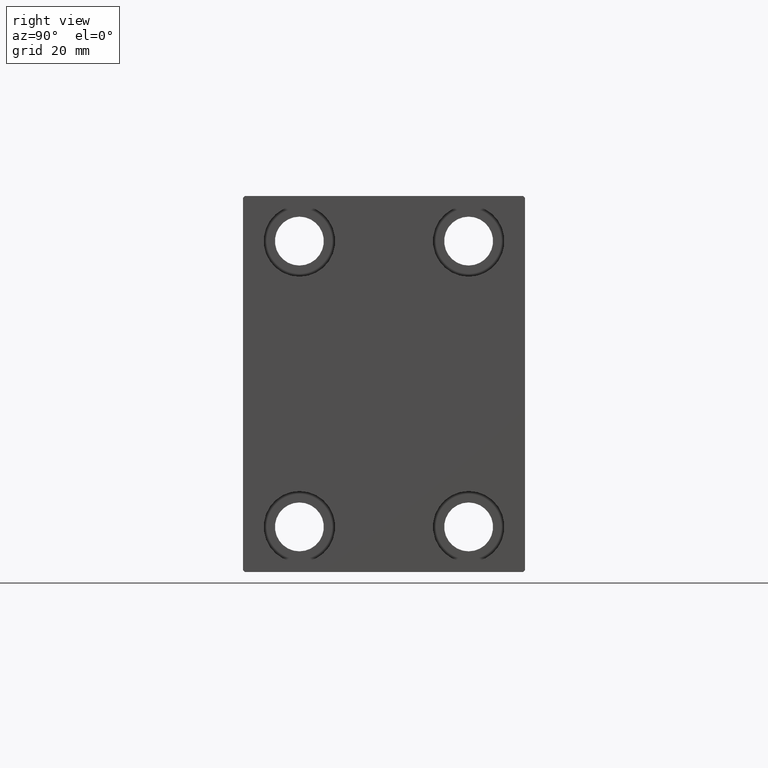
[diagram: clean part render]
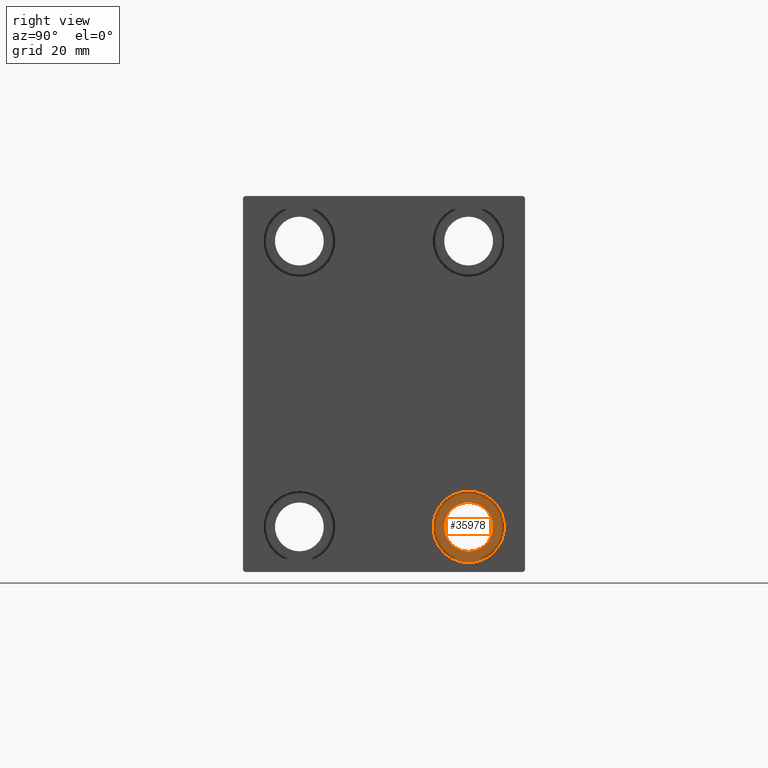
[diagram: same view with one face highlighted and labeled with its STEP entity id]
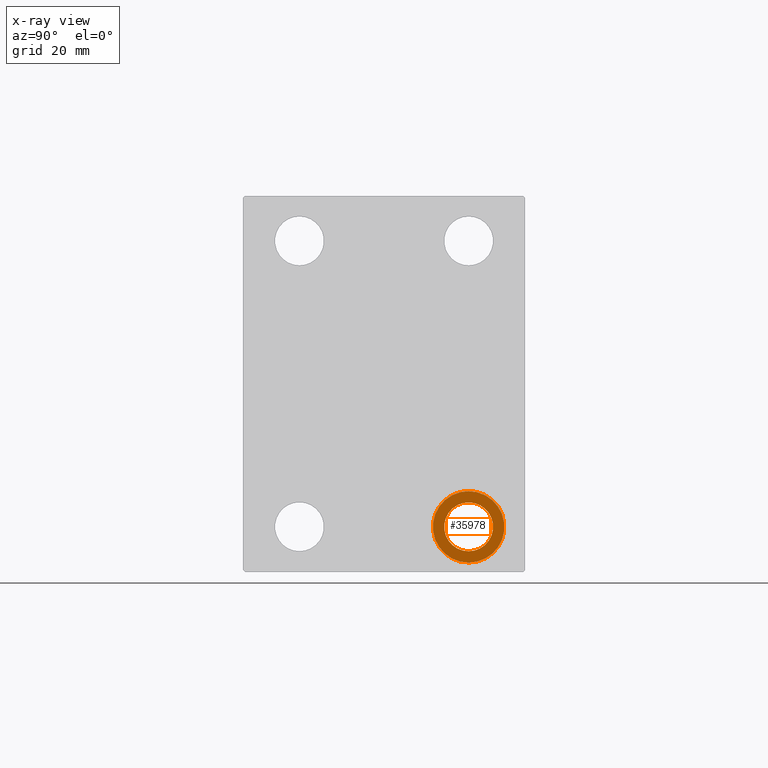
[diagram: x-ray of the same camera — body ghosted, the highlighted face saturated]
A machine part, right view. The second image highlights one B-rep face of the part: STEP entity #35978.
The next image is the same camera in x-ray: the body ghosted, the highlighted face saturated — about 0% of this face is hidden behind the body in this view.
In plain terms, the highlighted planar face has unit normal (1, 0, 0).
Its self-contained STEP definition (entity closure, byte-faithful):
#96 = EDGE_CURVE ( 'NONE', #38469, #22679, #43311, .T. ) ;
#1305 = DIRECTION ( 'NONE',  ( -1.000000000000000000, -0.000000000000000000, -0.000000000000000000 ) ) ;
#1899 = EDGE_CURVE ( 'NONE', #31520, #22088, #2809, .T. ) ;
#2716 = DIRECTION ( 'NONE',  ( 0.000000000000000000, 0.000000000000000000, -1.000000000000000000 ) ) ;
#2809 = CIRCLE ( 'NONE', #45589, 9.500000000000001776 ) ;
#3599 = EDGE_CURVE ( 'NONE', #22088, #31520, #11656, .T. ) ;
#3942 = DIRECTION ( 'NONE',  ( 0.000000000000000000, 0.000000000000000000, 1.000000000000000000 ) ) ;
#9846 = CARTESIAN_POINT ( 'NONE',  ( 80.00000000000000000, 22.49999999999999645, -31.49999999999999289 ) ) ;
#11290 = CARTESIAN_POINT ( 'NONE',  ( 80.00000000000000000, 22.49999999999999645, -37.99999999999999289 ) ) ;
#11656 = CIRCLE ( 'NONE', #42688, 9.500000000000001776 ) ;
#12171 = DIRECTION ( 'NONE',  ( -1.000000000000000000, -0.000000000000000000, -0.000000000000000000 ) ) ;
#12810 = CARTESIAN_POINT ( 'NONE',  ( 80.00000000000000000, 22.49999999999999645, -47.49999999999999289 ) ) ;
#13430 = CARTESIAN_POINT ( 'NONE',  ( 80.00000000000000000, 22.49999999999999645, -37.99999999999999289 ) ) ;
#15033 = AXIS2_PLACEMENT_3D ( 'NONE', #34358, #29956, #33904 ) ;
#15209 = FACE_BOUND ( 'NONE', #15814, .T. ) ;
#15255 = AXIS2_PLACEMENT_3D ( 'NONE', #11290, #25418, #39521 ) ;
#15814 = EDGE_LOOP ( 'NONE', ( #41770, #24760 ) ) ;
#16582 = DIRECTION ( 'NONE',  ( -1.000000000000000000, -0.000000000000000000, -0.000000000000000000 ) ) ;
#19226 = ORIENTED_EDGE ( 'NONE', *, *, #1899, .F. ) ;
#19311 = EDGE_CURVE ( 'NONE', #22679, #38469, #32790, .T. ) ;
#21888 = ORIENTED_EDGE ( 'NONE', *, *, #3599, .F. ) ;
#22088 = VERTEX_POINT ( 'NONE', #36870 ) ;
#22563 = DIRECTION ( 'NONE',  ( 0.000000000000000000, 0.000000000000000000, 1.000000000000000000 ) ) ;
#22679 = VERTEX_POINT ( 'NONE', #9846 ) ;
#23390 = AXIS2_PLACEMENT_3D ( 'NONE', #27463, #16582, #2716 ) ;
#24760 = ORIENTED_EDGE ( 'NONE', *, *, #96, .T. ) ;
#25418 = DIRECTION ( 'NONE',  ( 1.000000000000000000, 0.000000000000000000, -0.000000000000000000 ) ) ;
#27463 = CARTESIAN_POINT ( 'NONE',  ( 80.00000000000000000, 22.49999999999999645, -37.99999999999999289 ) ) ;
#29320 = PLANE ( 'NONE',  #15255 ) ;
#29505 = CARTESIAN_POINT ( 'NONE',  ( 80.00000000000000000, 22.49999999999999645, -37.99999999999999289 ) ) ;
#29820 = EDGE_LOOP ( 'NONE', ( #19226, #21888 ) ) ;
#29956 = DIRECTION ( 'NONE',  ( -1.000000000000000000, -0.000000000000000000, -0.000000000000000000 ) ) ;
#31520 = VERTEX_POINT ( 'NONE', #12810 ) ;
#32790 = CIRCLE ( 'NONE', #15033, 6.499999999999999112 ) ;
#33904 = DIRECTION ( 'NONE',  ( 0.000000000000000000, 0.000000000000000000, -1.000000000000000000 ) ) ;
#34358 = CARTESIAN_POINT ( 'NONE',  ( 80.00000000000000000, 22.49999999999999645, -37.99999999999999289 ) ) ;
#35169 = CARTESIAN_POINT ( 'NONE',  ( 80.00000000000000000, 22.49999999999999645, -44.49999999999999289 ) ) ;
#35978 = ADVANCED_FACE ( 'NONE', ( #36740, #15209 ), #29320, .T. ) ;
#36740 = FACE_OUTER_BOUND ( 'NONE', #29820, .T. ) ;
#36870 = CARTESIAN_POINT ( 'NONE',  ( 80.00000000000000000, 22.49999999999999645, -28.49999999999998934 ) ) ;
#38469 = VERTEX_POINT ( 'NONE', #35169 ) ;
#39521 = DIRECTION ( 'NONE',  ( 0.000000000000000000, 0.000000000000000000, 1.000000000000000000 ) ) ;
#41770 = ORIENTED_EDGE ( 'NONE', *, *, #19311, .T. ) ;
#42688 = AXIS2_PLACEMENT_3D ( 'NONE', #13430, #12171, #3942 ) ;
#43311 = CIRCLE ( 'NONE', #23390, 6.499999999999999112 ) ;
#45589 = AXIS2_PLACEMENT_3D ( 'NONE', #29505, #1305, #22563 ) ;